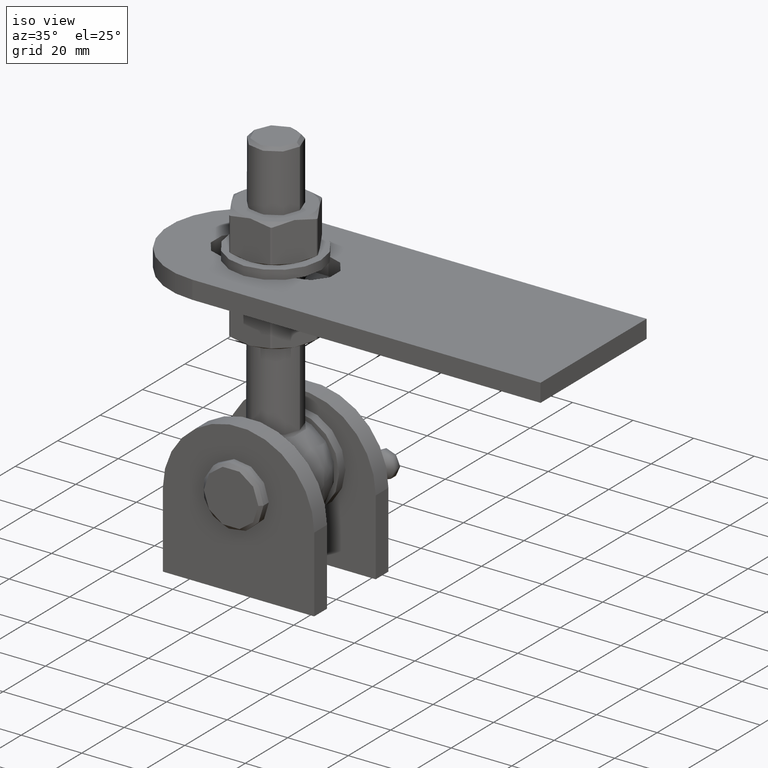
[diagram: clean part render]
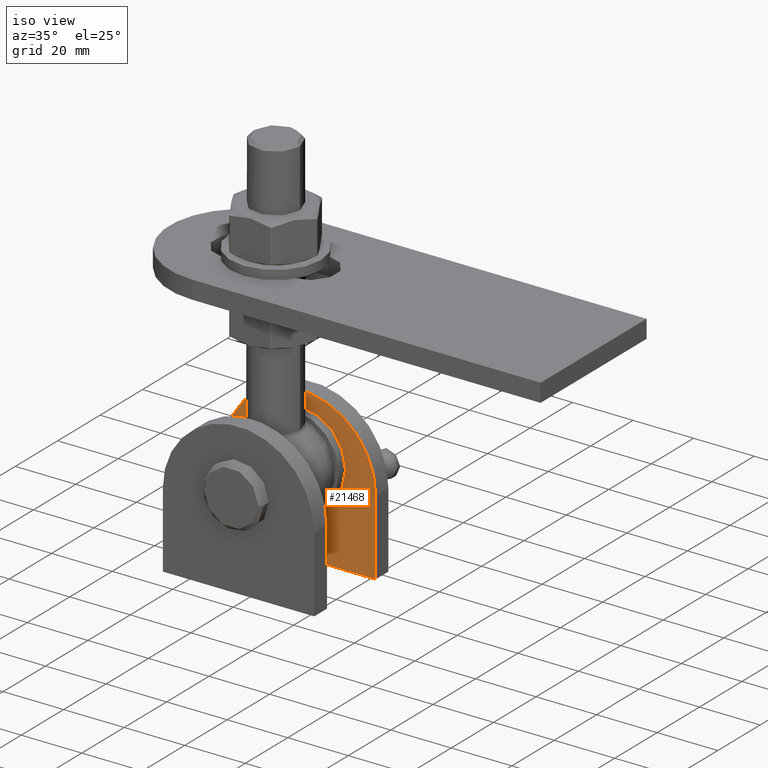
[diagram: same view with one face highlighted and labeled with its STEP entity id]
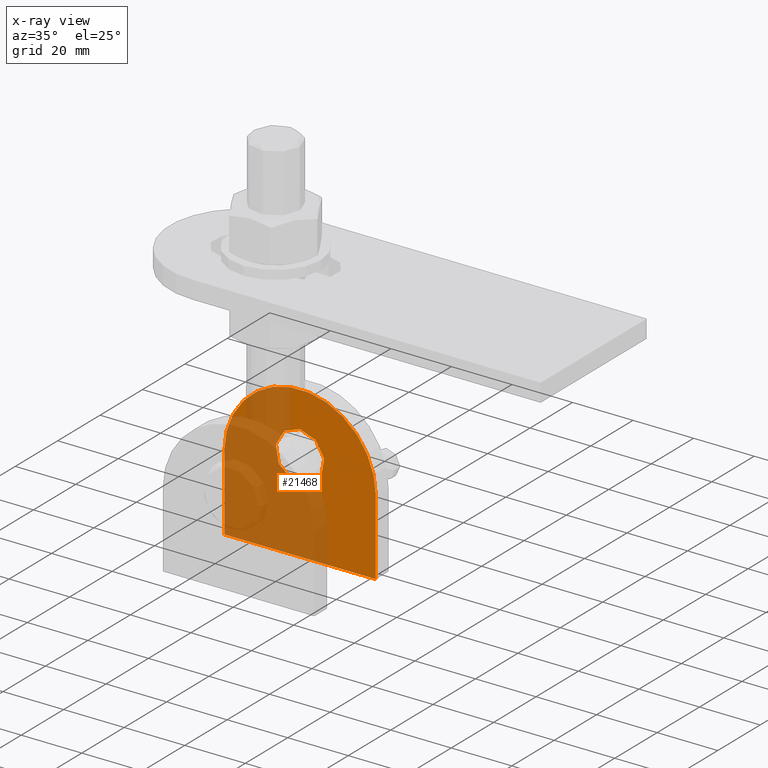
[diagram: x-ray of the same camera — body ghosted, the highlighted face saturated]
A machine part, iso view. The second image highlights one B-rep face of the part: STEP entity #21468.
The next image is the same camera in x-ray: the body ghosted, the highlighted face saturated — about 57% of this face is hidden behind the body in this view.
In plain terms, the highlighted planar face has unit normal (0, -1, 0).
Its self-contained STEP definition (entity closure, byte-faithful):
#278 = ORIENTED_EDGE ( 'NONE', *, *, #3106, .F. ) ;
#1584 = EDGE_CURVE ( 'NONE', #21241, #21241, #8666, .T. ) ;
#1635 = DIRECTION ( 'NONE',  ( 0.000000000000000000, 1.000000000000000000, -0.000000000000000000 ) ) ;
#2107 = CARTESIAN_POINT ( 'NONE',  ( 25.00000000000000711, -2.999999999999999112, -1.301042606982605321E-14 ) ) ;
#3106 = EDGE_CURVE ( 'NONE', #24990, #17496, #26817, .T. ) ;
#4069 = DIRECTION ( 'NONE',  ( 0.000000000000000000, 0.000000000000000000, -1.000000000000000000 ) ) ;
#4792 = AXIS2_PLACEMENT_3D ( 'NONE', #25654, #23608, #18820 ) ;
#5088 = CIRCLE ( 'NONE', #20085, 25.00000000000000355 ) ;
#5889 = VECTOR ( 'NONE', #21385, 1000.000000000000000 ) ;
#6350 = CARTESIAN_POINT ( 'NONE',  ( 6.938893903907228378E-15, -2.999999999999999112, -6.938893903907228378E-15 ) ) ;
#6452 = VERTEX_POINT ( 'NONE', #2107 ) ;
#7056 = CARTESIAN_POINT ( 'NONE',  ( 25.00000000000000000, -2.999999999999999112, -25.00000000000000711 ) ) ;
#7279 = VECTOR ( 'NONE', #21111, 1000.000000000000000 ) ;
#8666 = CIRCLE ( 'NONE', #4792, 8.099999999999999645 ) ;
#9149 = AXIS2_PLACEMENT_3D ( 'NONE', #28117, #25795, #18868 ) ;
#9197 = EDGE_CURVE ( 'NONE', #17496, #17587, #19856, .T. ) ;
#9685 = FACE_BOUND ( 'NONE', #27743, .T. ) ;
#9937 = CARTESIAN_POINT ( 'NONE',  ( -25.00000000000000000, -2.999999999999999112, -25.00000000000000000 ) ) ;
#12181 = EDGE_CURVE ( 'NONE', #17587, #6452, #5088, .T. ) ;
#14557 = VECTOR ( 'NONE', #25696, 1000.000000000000000 ) ;
#14651 = PLANE ( 'NONE',  #9149 ) ;
#15630 = FACE_OUTER_BOUND ( 'NONE', #20844, .T. ) ;
#17015 = LINE ( 'NONE', #21404, #14557 ) ;
#17496 = VERTEX_POINT ( 'NONE', #9937 ) ;
#17587 = VERTEX_POINT ( 'NONE', #23593 ) ;
#18675 = CARTESIAN_POINT ( 'NONE',  ( 3.469446951953614189E-15, -2.999999999999999112, 13.09999999999999787 ) ) ;
#18820 = DIRECTION ( 'NONE',  ( 0.000000000000000000, 0.000000000000000000, 1.000000000000000000 ) ) ;
#18868 = DIRECTION ( 'NONE',  ( 0.000000000000000000, -0.000000000000000000, -1.000000000000000000 ) ) ;
#19856 = LINE ( 'NONE', #26066, #5889 ) ;
#20079 = EDGE_CURVE ( 'NONE', #6452, #24990, #17015, .T. ) ;
#20085 = AXIS2_PLACEMENT_3D ( 'NONE', #6350, #1635, #4069 ) ;
#20219 = ORIENTED_EDGE ( 'NONE', *, *, #12181, .F. ) ;
#20844 = EDGE_LOOP ( 'NONE', ( #25594, #278, #26464, #20219 ) ) ;
#21111 = DIRECTION ( 'NONE',  ( -1.000000000000000000, -0.000000000000000000, 1.387778780781445676E-16 ) ) ;
#21241 = VERTEX_POINT ( 'NONE', #18675 ) ;
#21385 = DIRECTION ( 'NONE',  ( -0.000000000000000000, -0.000000000000000000, 1.000000000000000000 ) ) ;
#21404 = CARTESIAN_POINT ( 'NONE',  ( 25.00000000000000000, -2.999999999999999112, -25.00000000000000711 ) ) ;
#21405 = CARTESIAN_POINT ( 'NONE',  ( -25.00000000000000000, -2.999999999999999112, -25.00000000000000000 ) ) ;
#21468 = ADVANCED_FACE ( 'NONE', ( #15630, #9685 ), #14651, .T. ) ;
#23593 = CARTESIAN_POINT ( 'NONE',  ( -24.99999999999999645, -2.999999999999999112, -2.602085213965210642E-15 ) ) ;
#23608 = DIRECTION ( 'NONE',  ( 0.000000000000000000, 1.000000000000000000, 0.000000000000000000 ) ) ;
#24604 = ORIENTED_EDGE ( 'NONE', *, *, #1584, .T. ) ;
#24990 = VERTEX_POINT ( 'NONE', #7056 ) ;
#25594 = ORIENTED_EDGE ( 'NONE', *, *, #9197, .F. ) ;
#25654 = CARTESIAN_POINT ( 'NONE',  ( 3.469446951953614189E-15, -2.999999999999999112, 4.999999999999997335 ) ) ;
#25696 = DIRECTION ( 'NONE',  ( -2.775557561562891844E-16, -0.000000000000000000, -1.000000000000000000 ) ) ;
#25795 = DIRECTION ( 'NONE',  ( 0.000000000000000000, -1.000000000000000000, 0.000000000000000000 ) ) ;
#26066 = CARTESIAN_POINT ( 'NONE',  ( -25.00000000000000000, -2.999999999999999112, -6.938893903907228378E-15 ) ) ;
#26464 = ORIENTED_EDGE ( 'NONE', *, *, #20079, .F. ) ;
#26817 = LINE ( 'NONE', #21405, #7279 ) ;
#27743 = EDGE_LOOP ( 'NONE', ( #24604 ) ) ;
#28117 = CARTESIAN_POINT ( 'NONE',  ( 6.938893903907228378E-15, -2.999999999999999112, -6.938893903907228378E-15 ) ) ;